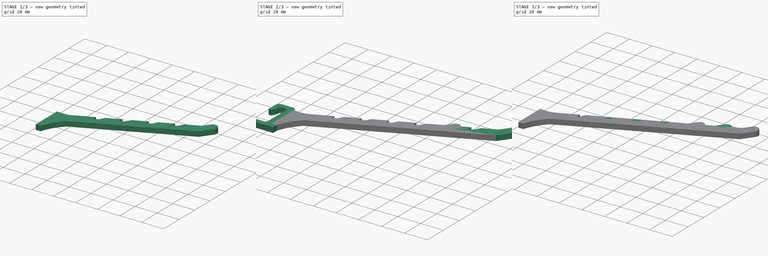
[diagram: build sequence overview — one tinted view per stage of 3, left to right]
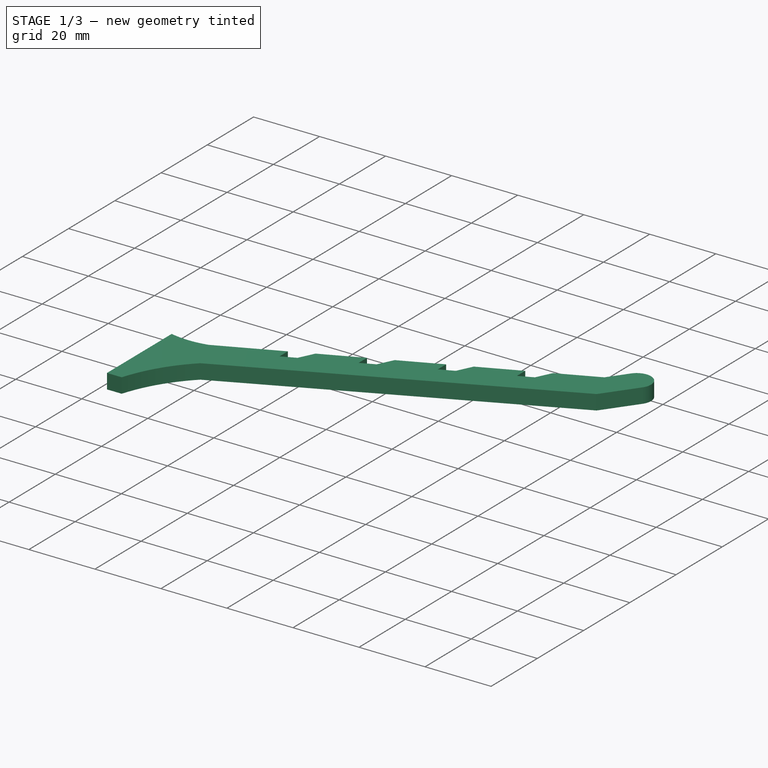
[diagram: stage 1 of 3 — iso view after this stage's code; geometry added in this stage tinted green]
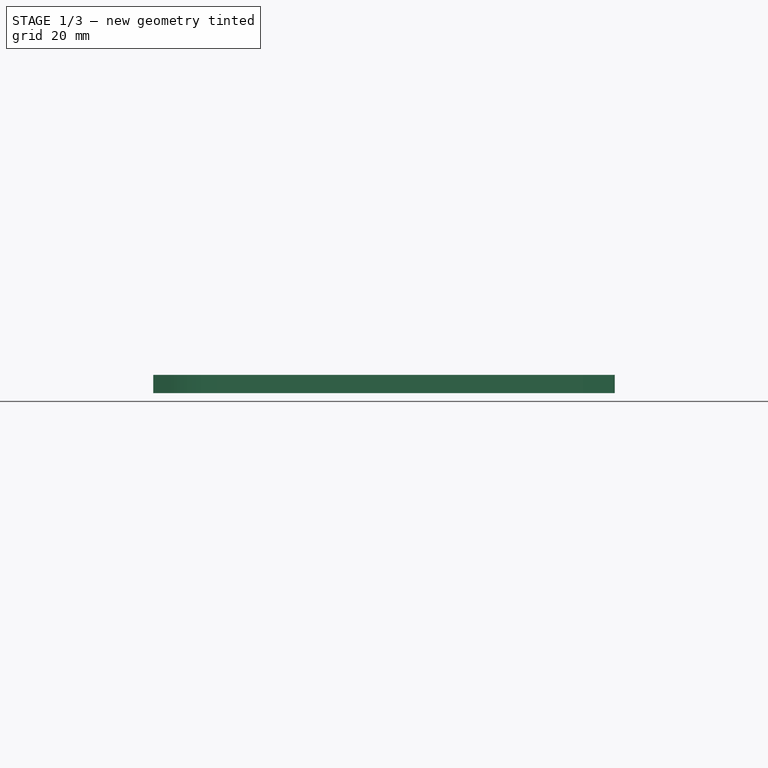
[diagram: stage 1 of 3 — front view after this stage's code; geometry added in this stage tinted green]
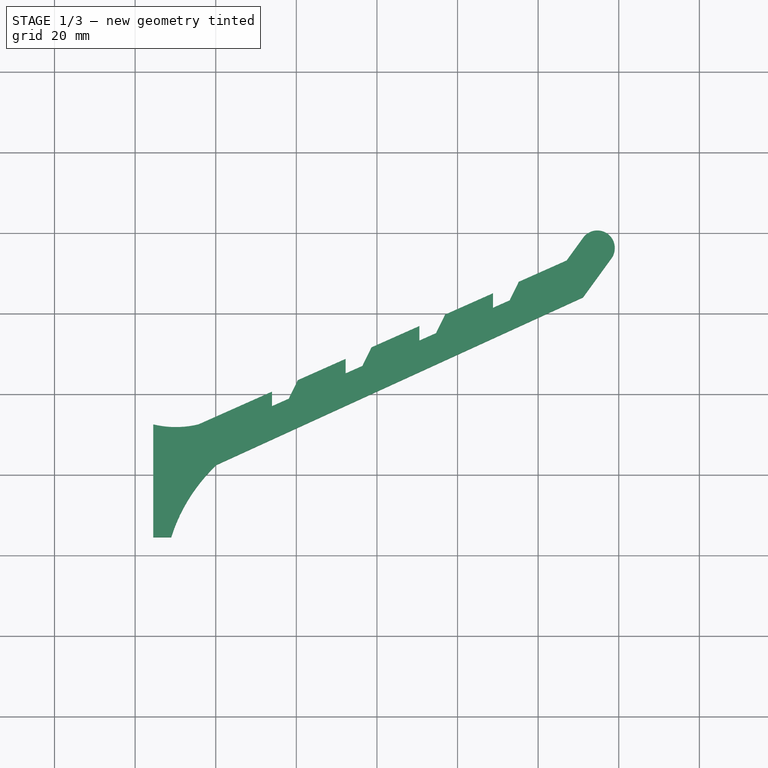
[diagram: stage 1 of 3 — top view after this stage's code; geometry added in this stage tinted green]
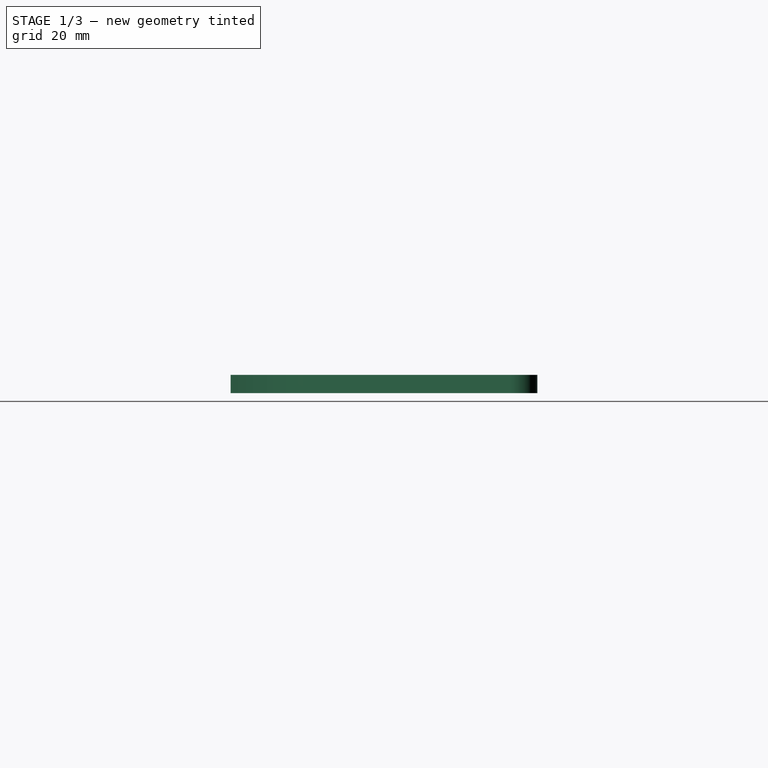
[diagram: stage 1 of 3 — right view after this stage's code; geometry added in this stage tinted green]
FCSTD DOCUMENT  (FreeCAD 0.19R24366 (Git))
Label: arm_improved
License: All rights reserved
LicenseURL: http://en.wikipedia.org/wiki/All_rights_reserved
objects: Sketcher::SketchObject×7, PartDesign::ShapeBinder×6, PartDesign::Pad×3, PartDesign::Pocket×3, PartDesign::Body×3, Part::Extrusion×1
note: 29 computed .brp shape members not serialized (recipe doc carries the construction recipe); baked Part::Feature solids carry a one-line shape summary decoded from their .brp

FEATURE [PartDesign::Body] Body001  label="Hook long"
  Group = -> [ShapeBinder002,Sketch004,Pad001,Sketch005,ShapeBinder003,Pocket001]
  Origin = -> Origin001
  Tip = -> Pocket001
FEATURE [PartDesign::ShapeBinder] ShapeBinder004
  TraceSupport = false
FEATURE [Sketcher::SketchObject] Sketch007
  ExternalGeometry = -> [ShapeBinder004]
  FullyConstrained = false
  MapMode = 5
  Support = -> [XY_Plane002]
  sketch-geometry (13):
    g0: ArcOfCircle CenterX=10.1027 CenterY=55.8369 CenterZ=0 NormalX=0 NormalY=0 NormalZ=1 AngleXU=0 Radius=24 StartAngle=4.47677 EndAngle=4.94801
    g1: LineSegment StartX=4.5 StartY=32.5 StartZ=0 EndX=29.8437 EndY=32.5 EndZ=0
    g2: LineSegment StartX=15.7054 StartY=32.5 StartZ=0 EndX=107.06 EndY=73.1737 EndZ=0
    g3: LineSegment StartX=107.06 StartY=73.1737 StartZ=0 EndX=111.174 EndY=78.8368 EndZ=0
    g4: ArcOfCircle CenterX=114.678 CenterY=76.2916 CenterZ=0 NormalX=0 NormalY=0 NormalZ=1 AngleXU=0 Radius=4.33013 StartAngle=5.65487 EndAngle=8.79646
    g5: LineSegment StartX=118.181 StartY=73.7464 StartZ=0 EndX=111.127 EndY=64.0382 EndZ=0
    g6: LineSegment StartX=111.127 StartY=64.0382 StartZ=0 EndX=20.1795 EndY=22.451 EndZ=0
    g7: LineSegment StartX=107.06 StartY=73.1737 StartZ=0 EndX=111.823 EndY=62.4766 EndZ=0
    g8: LineSegment StartX=15.7054 StartY=32.5 StartZ=0 EndX=20.256 EndY=22.2792 EndZ=0
    g9: ArcOfCircle CenterX=49.0219 CenterY=-8.0796 CenterZ=0 NormalX=0 NormalY=0 NormalZ=1 AngleXU=0 Radius=42 StartAngle=2.32777 EndAngle=2.83741
    g10: LineSegment StartX=111.174 StartY=78.8368 StartZ=0 EndX=68.085 EndY=110.143 EndZ=0
    g11: LineSegment StartX=8.95 StartY=4.5 StartZ=0 EndX=4.5 EndY=4.5 EndZ=0
    g12: LineSegment StartX=4.5 StartY=4.5 StartZ=0 EndX=4.5 EndY=32.5 EndZ=0
  constraints (35):
    c: Coincident(g0,g-3)
    c: Coincident(g1,g0)
    c: Horizontal(g1)
    c: PointOnObject(g0,g1)
    c: Coincident(g2,g0)
    c: Coincident(g3,g2)
    c: Coincident(g4,g3)
    c: Coincident(g5,g4)
    c: Parallel(g3,g5)
    c: Coincident(g6,g5)
    c: Coincident(g7,g2)
    c: Perpendicular(g2,g7)
    c: PointOnObject(g5,g7)
    c: Coincident(g8,g0)
    c: Perpendicular(g8,g2)
    c: PointOnObject(g6,g8)
    c: Distance(g0,g6) = 11
    c: Distance(g5,g2) = 10
    c: Coincident(g9,g6)
    c: Distance(g5) = 12
    c: Coincident(g10,g3)
    c: Perpendicular(g3,g10)
    c: PointOnObject(g4,g10)
    c: PointOnObject(g4,g10)
    c: Angle(g3,g2) = 2.61799
    c: Distance(g2,g0) = 100
    c: Angle(g0) = 0.471239
    c: Radius(g0) = 24
    c: Angle(g1,g2) = 0.418879
    c: Coincident(g9,g-6)
    c: Radius(g9) = 42
    c: Coincident(g11,g9)
    c: Coincident(g11,g-5)
    c: Coincident(g12,g11)
    c: Coincident(g12,g0)
FEATURE [PartDesign::Pad] Pad002
  Direction = (1,1,1)
  Length = 4.5
  Length2 = 100
  Profile = -> Sketch007
  Refine = true
  Type = 0
FEATURE [Sketcher::SketchObject] Sketch008
  ExternalGeometry = -> [Sketch007]
  FullyConstrained = true
  MapMode = 5
  Support = -> [XY_Plane002]
  sketch-geometry (4):
    g0: LineSegment StartX=6.39482 StartY=2.84716 StartZ=0 EndX=4.15193 EndY=-1.75144 EndZ=0
    g1: LineSegment StartX=4.15193 StartY=-1.75144 StartZ=0 EndX=0 EndY=-3.6 EndZ=0
    g2: LineSegment StartX=0 StartY=-3.6 StartZ=0 EndX=0 EndY=0 EndZ=0
    g3: LineSegment StartX=0 StartY=0 StartZ=0 EndX=6.39482 EndY=2.84716 EndZ=0
  constraints (12):
    c: Coincident(g0,g1)
    c: Coincident(g1,g2)
    c: Vertical(g2)
    c: Coincident(g2,g3)
    c: Coincident(g3,g0)
    c: Parallel(g3,g1)
    c: Angle(g0,g1) = 2.44346
    c: Distance(g3) = 7
    c: Distance(g2) = 3.6
    c: Angle(g-1,g-3) = 0.418879
    c: Angle(g-1,g3) = 0.418879
    c: Coincident(g2,g-1)
FEATURE [PartDesign::ShapeBinder] ShapeBinder005
  TraceSupport = false
FEATURE [PartDesign::Pocket] Pocket002
  BaseFeature = -> Pad002
  Length = 5
  Length2 = 100
  Profile = -> ShapeBinder005
  Refine = true
  Type = 0
FEATURE [PartDesign::Body] Body002  label="Hook short"
  Group = -> [ShapeBinder004,Sketch007,Pad002,Sketch008,ShapeBinder005,Pocket002]
  Origin = -> Origin002
  Tip = -> Pocket002
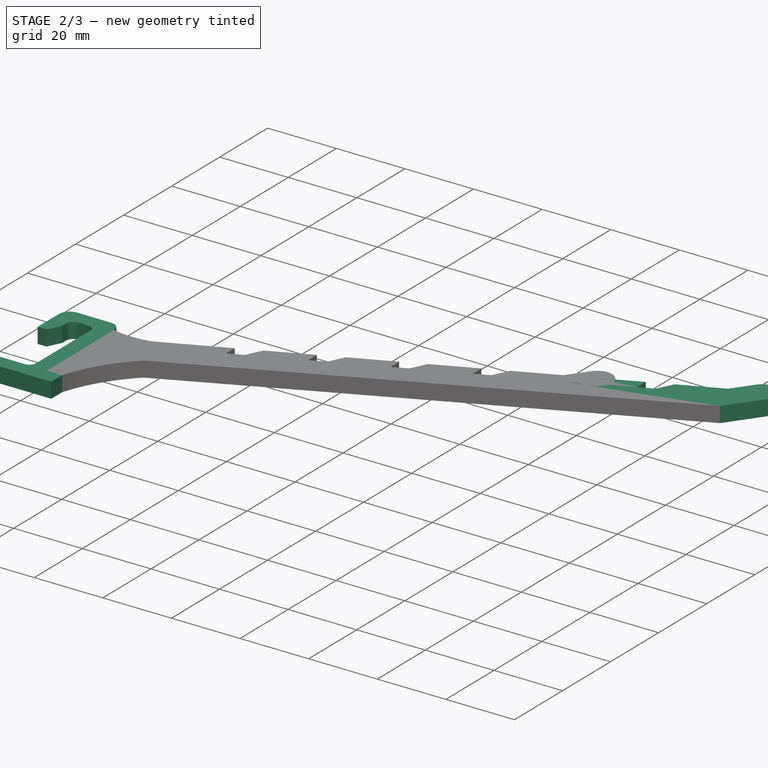
[diagram: stage 2 of 3 — iso view after this stage's code; geometry added in this stage tinted green]
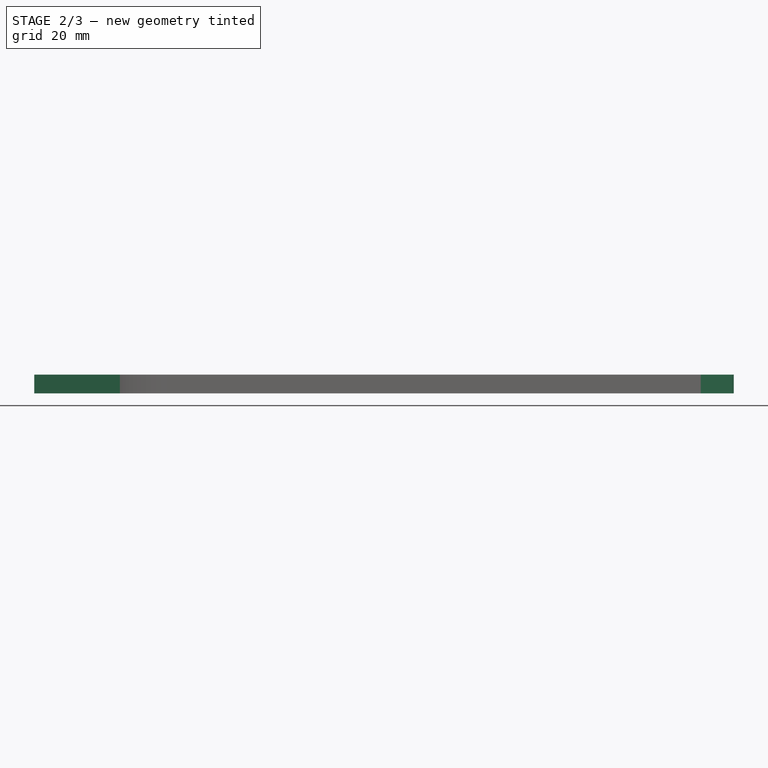
[diagram: stage 2 of 3 — front view after this stage's code; geometry added in this stage tinted green]
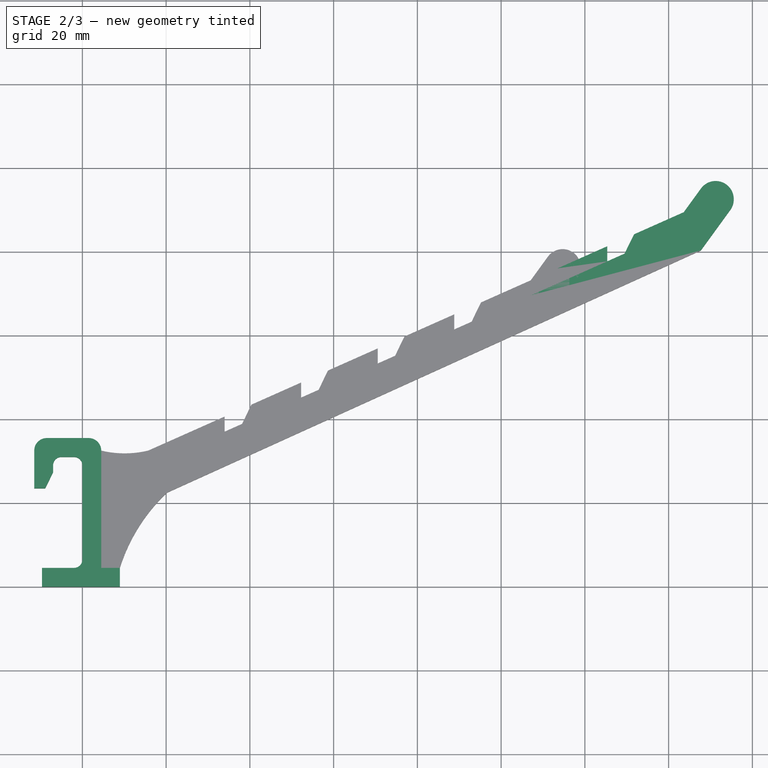
[diagram: stage 2 of 3 — top view after this stage's code; geometry added in this stage tinted green]
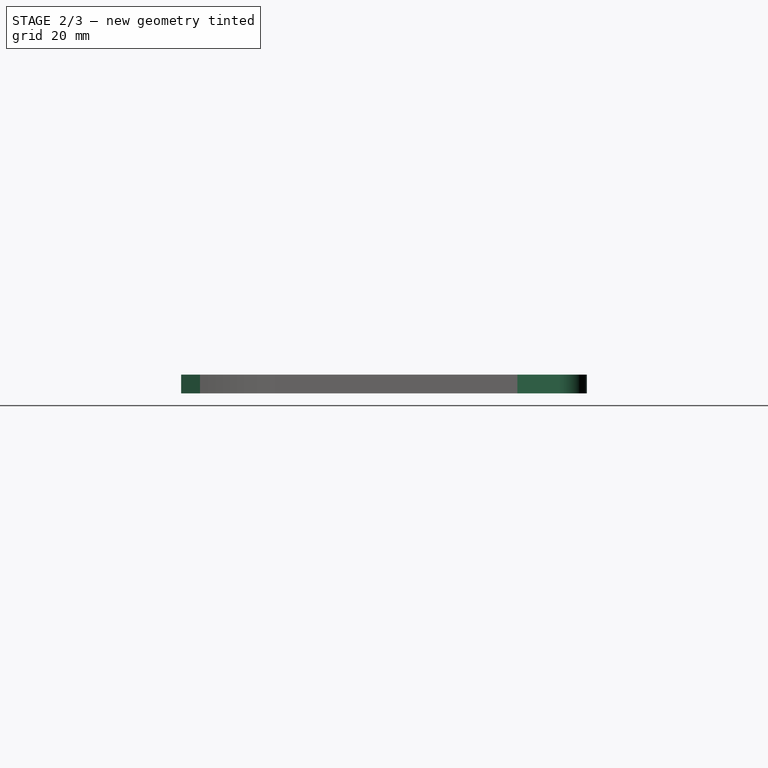
[diagram: stage 2 of 3 — right view after this stage's code; geometry added in this stage tinted green]
FEATURE [Sketcher::SketchObject] Sketch
  FullyConstrained = false
  sketch-geometry (20):
    g0: LineSegment StartX=0 StartY=0 StartZ=0 EndX=8.95 EndY=0 EndZ=0
    g1: LineSegment StartX=0 StartY=29 StartZ=0 EndX=0 EndY=6.5 EndZ=0
    g2: LineSegment StartX=8.95 StartY=0 StartZ=0 EndX=8.95 EndY=4.5 EndZ=0
    g3: LineSegment StartX=8.95 StartY=4.5 StartZ=0 EndX=4.5 EndY=4.5 EndZ=0
    g4: LineSegment StartX=0 StartY=0 StartZ=0 EndX=-9.63565 EndY=0 EndZ=0
    g5: LineSegment StartX=-9.63565 StartY=0 StartZ=0 EndX=-9.63565 EndY=4.5 EndZ=0
    g6: LineSegment StartX=-9.63565 StartY=4.5 StartZ=0 EndX=-2 EndY=4.5 EndZ=0
    g7: LineSegment StartX=1.5 StartY=35.5 StartZ=0 EndX=-8.5 EndY=35.5 EndZ=0
    g8: LineSegment StartX=-5 StartY=31 StartZ=0 EndX=-2 EndY=31 EndZ=0
    g9: LineSegment StartX=-7 StartY=29 StartZ=0 EndX=-7 EndY=27.3347 EndZ=0
    g10: LineSegment StartX=-8.88721 StartY=23.5 StartZ=0 EndX=-11.5 EndY=23.5 EndZ=0
    g11: LineSegment StartX=-11.5 StartY=23.5 StartZ=0 EndX=-11.5 EndY=32.5 EndZ=0
    g12: ArcOfCircle CenterX=-5 CenterY=29 CenterZ=0 NormalX=0 NormalY=0 NormalZ=1 AngleXU=0 Radius=2 StartAngle=1.5708 EndAngle=3.14159
    g13: ArcOfCircle CenterX=-2 CenterY=29 CenterZ=0 NormalX=0 NormalY=0 NormalZ=1 AngleXU=0 Radius=2 StartAngle=8e-16 EndAngle=1.5708
    g14: ArcOfCircle CenterX=-2 CenterY=6.5 CenterZ=0 NormalX=0 NormalY=0 NormalZ=1 AngleXU=0 Radius=2 StartAngle=4.71239 EndAngle=6.28319
    g15: LineSegment StartX=4.5 StartY=25.8 StartZ=0 EndX=4.5 EndY=32.5 EndZ=0
    g16: LineSegment StartX=4.5 StartY=4.5 StartZ=0 EndX=4.5 EndY=25.8 EndZ=0
    g17: ArcOfCircle CenterX=-8.5 CenterY=32.5 CenterZ=0 NormalX=0 NormalY=0 NormalZ=1 AngleXU=0 Radius=3 StartAngle=1.5708 EndAngle=3.14159
    g18: ArcOfCircle CenterX=1.5 CenterY=32.5 CenterZ=0 NormalX=0 NormalY=0 NormalZ=1 AngleXU=0 Radius=3 StartAngle=4e-16 EndAngle=1.5708
    g19: LineSegment StartX=-8.88721 StartY=23.5 StartZ=0 EndX=-7 EndY=27.3347 EndZ=0
  constraints (51):
    c: Horizontal(g0)
    c: Vertical(g1)
    c: Coincident(g0,g-1)
    c: Coincident(g2,g3)
    c: Horizontal(g3)
    c: Vertical(g2)
    c: Coincident(g4,g5)
    c: Coincident(g5,g6)
    c: Horizontal(g4)
    c: Horizontal(g6)
    c: Vertical(g5)
    c: Coincident(g4,g0)
    c: Horizontal(g7)
    c: Horizontal(g8)
    c: Coincident(g10,g11)
    c: Horizontal(g10)
    c: Vertical(g9)
    c: Vertical(g11)
    c: DistanceX(g3,g3) = 4.45
    c: DistanceY(g2,g2) = 4.5
    c: DistanceY(g5,g5) = 4.5
    c: DistanceY(g3,g16) = 21.3
    c: Tangent(g9,g12) = -1.5708
    c: Tangent(g8,g12) = 1.5708
    c: Tangent(g8,g13) = 1.5708
    c: Tangent(g1,g13) = 1.5708
    c: Tangent(g1,g14) = 1.5708
    c: Tangent(g6,g14) = -1.5708
    c: Distance(g8,g7) = 4.5
    c: Vertical(g1,g0)
    c: Radius(g12) = 2
    c: Radius(g13) = 2
    c: Radius(g14) = 2
    c: Coincident(g16,g3)
    c: Vertical(g16)
    c: Distance(g1,g16) = 4.5
    c: Vertical(g15)
    c: Coincident(g0,g2)
    c: Tangent(g7,g17) = -1.5708
    c: Tangent(g11,g17) = 1.5708
    c: Distance(g10,g7) = 12
    c: Radius(g17) = 3
    c: Distance(g0,g7) = 35.5
    c: Tangent(g7,g18) = -1.5708
    c: Tangent(g15,g18) = -1.5708
    c: Radius(g18) = 3
    c: Coincident(g19,g10)
    c: Coincident(g19,g9)
    c: Distance(g9,g11) = 4.5
    c: Distance(g9,g1) = 7
    c: Coincident(g15,g16)
FEATURE [Part::Extrusion] Extrude
  Base = -> Sketch
  Dir = (0,0,1)
  DirMode = 2
  FaceMakerClass = Part::FaceMakerBullseye
  LengthFwd = 4.5
  LengthRev = 0
  Solid = true
  Symmetric = false
FEATURE [PartDesign::Body] Body  label="Hook"
  Group = -> [ShapeBinder,Sketch001,Pad,Sketch002,ShapeBinder001,Pocket]
  Origin = -> Origin
  Tip = -> Pocket
FEATURE [PartDesign::ShapeBinder] ShapeBinder002
  TraceSupport = false
FEATURE [Sketcher::SketchObject] Sketch004
  ExternalGeometry = -> [ShapeBinder002]
  FullyConstrained = false
  MapMode = 5
  Support = -> [XY_Plane001]
  sketch-geometry (13):
    g0: ArcOfCircle CenterX=10.1027 CenterY=55.8369 CenterZ=0 NormalX=0 NormalY=0 NormalZ=1 AngleXU=0 Radius=24 StartAngle=4.47677 EndAngle=4.94801
    g1: LineSegment StartX=4.5 StartY=32.5 StartZ=0 EndX=29.8437 EndY=32.5 EndZ=0
    g2: LineSegment StartX=15.7054 StartY=32.5 StartZ=0 EndX=143.602 EndY=89.4431 EndZ=0
    g3: LineSegment StartX=143.602 StartY=89.4431 StartZ=0 EndX=147.716 EndY=95.1062 EndZ=0
    g4: ArcOfCircle CenterX=151.219 CenterY=92.5611 CenterZ=0 NormalX=0 NormalY=0 NormalZ=1 AngleXU=0 Radius=4.33013 StartAngle=5.65487 EndAngle=8.79646
    g5: LineSegment StartX=154.723 StartY=90.0159 StartZ=0 EndX=147.669 EndY=80.3077 EndZ=0
    g6: LineSegment StartX=147.669 StartY=80.3077 StartZ=0 EndX=20.1795 EndY=22.451 EndZ=0
    g7: LineSegment StartX=143.602 StartY=89.4431 StartZ=0 EndX=148.387 EndY=78.6959 EndZ=0
    g8: LineSegment StartX=15.7054 StartY=32.5 StartZ=0 EndX=20.256 EndY=22.2791 EndZ=0
    g9: ArcOfCircle CenterX=49.0219 CenterY=-8.0796 CenterZ=0 NormalX=0 NormalY=0 NormalZ=1 AngleXU=0 Radius=42 StartAngle=2.32777 EndAngle=2.83741
    g10: LineSegment StartX=147.716 StartY=95.1062 StartZ=0 EndX=88.4465 EndY=138.168 EndZ=0
    g11: LineSegment StartX=8.95 StartY=4.5 StartZ=0 EndX=4.5 EndY=4.5 EndZ=0
    g12: LineSegment StartX=4.5 StartY=4.5 StartZ=0 EndX=4.5 EndY=32.5 EndZ=0
  constraints (35):
    c: Coincident(g0,g-3)
    c: Coincident(g1,g0)
    c: Horizontal(g1)
    c: PointOnObject(g0,g1)
    c: Coincident(g2,g0)
    c: Coincident(g3,g2)
    c: Coincident(g4,g3)
    c: Coincident(g5,g4)
    c: Parallel(g3,g5)
    c: Coincident(g6,g5)
    c: Coincident(g7,g2)
    c: Perpendicular(g2,g7)
    c: PointOnObject(g5,g7)
    c: Coincident(g8,g0)
    c: Perpendicular(g8,g2)
    c: PointOnObject(g6,g8)
    c: Distance(g0,g6) = 11
    c: Distance(g5,g2) = 10
    c: Coincident(g9,g6)
    c: Distance(g5) = 12
    c: Coincident(g10,g3)
    c: Perpendicular(g3,g10)
    c: PointOnObject(g4,g10)
    c: PointOnObject(g4,g10)
    c: Angle(g3,g2) = 2.61799
    c: Distance(g2,g0) = 140
    c: Angle(g0) = 0.471239
    c: Radius(g0) = 24
    c: Angle(g1,g2) = 0.418879
    c: Coincident(g9,g-6)
    c: Radius(g9) = 42
    c: Coincident(g11,g9)
    c: Coincident(g11,g-5)
    c: Coincident(g12,g11)
    c: Coincident(g12,g0)
FEATURE [PartDesign::Pad] Pad001
  Direction = (1,1,1)
  Length = 4.5
  Length2 = 100
  Profile = -> Sketch004
  Refine = true
  Type = 0
FEATURE [Sketcher::SketchObject] Sketch005
  ExternalGeometry = -> [Sketch004]
  FullyConstrained = true
  MapMode = 5
  Support = -> [XY_Plane001]
  sketch-geometry (4):
    g0: LineSegment StartX=6.39482 StartY=2.84716 StartZ=0 EndX=4.15193 EndY=-1.75144 EndZ=0
    g1: LineSegment StartX=4.15193 StartY=-1.75144 StartZ=0 EndX=0 EndY=-3.6 EndZ=0
    g2: LineSegment StartX=0 StartY=-3.6 StartZ=0 EndX=0 EndY=0 EndZ=0
    g3: LineSegment StartX=0 StartY=0 StartZ=0 EndX=6.39482 EndY=2.84716 EndZ=0
  constraints (12):
    c: Coincident(g0,g1)
    c: Coincident(g1,g2)
    c: Vertical(g2)
    c: Coincident(g2,g3)
    c: Coincident(g3,g0)
    c: Parallel(g3,g1)
    c: Angle(g0,g1) = 2.44346
    c: Distance(g3) = 7
    c: Distance(g2) = 3.6
    c: Angle(g-1,g-3) = 0.418879
    c: Angle(g-1,g3) = 0.418879
    c: Coincident(g2,g-1)
FEATURE [PartDesign::ShapeBinder] ShapeBinder003
  TraceSupport = false
FEATURE [PartDesign::Pocket] Pocket001
  BaseFeature = -> Pad001
  Length = 5
  Length2 = 100
  Profile = -> ShapeBinder003
  Refine = true
  Type = 0
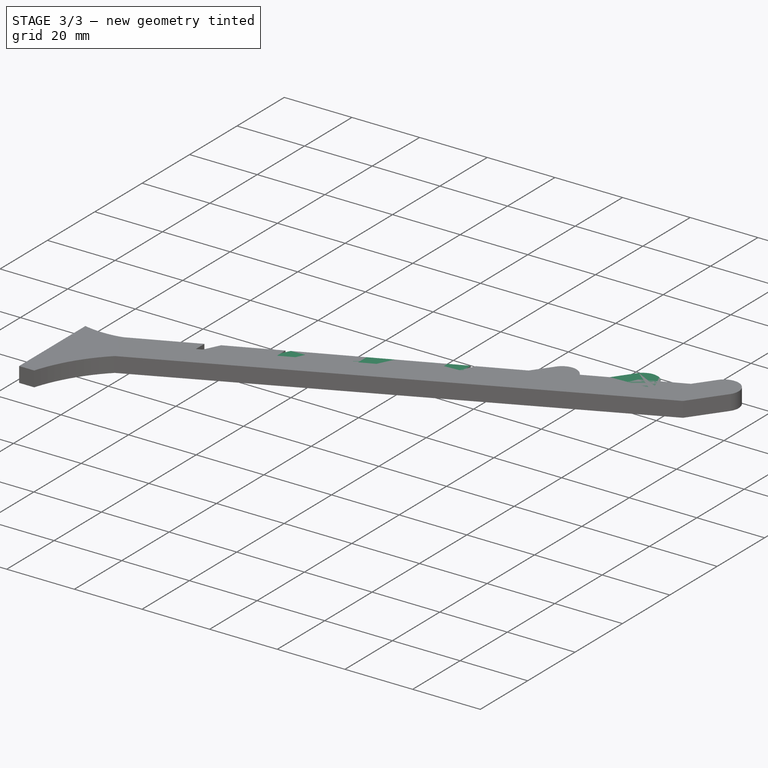
[diagram: stage 3 of 3 — iso view after this stage's code; geometry added in this stage tinted green]
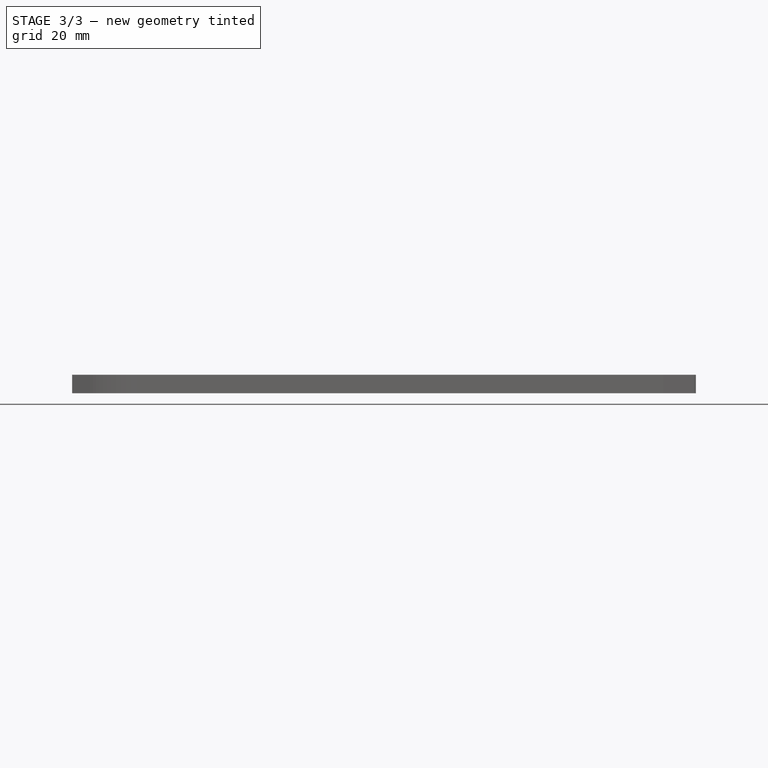
[diagram: stage 3 of 3 — front view after this stage's code; geometry added in this stage tinted green]
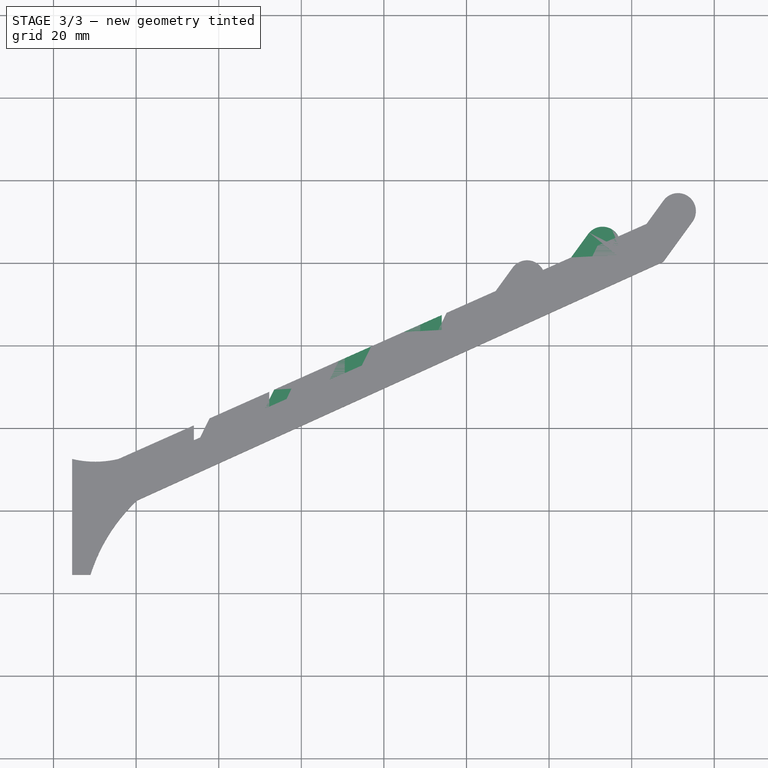
[diagram: stage 3 of 3 — top view after this stage's code; geometry added in this stage tinted green]
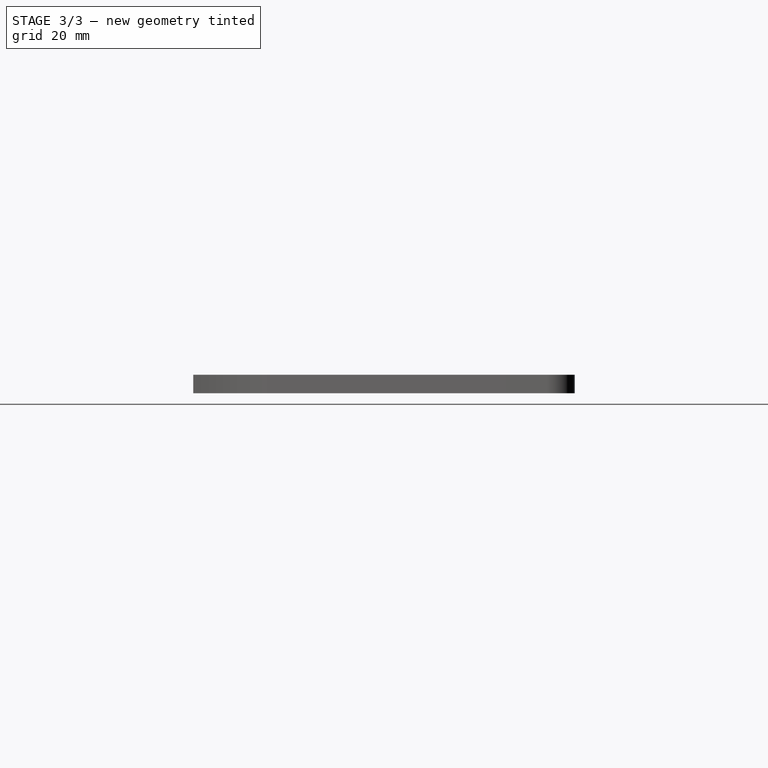
[diagram: stage 3 of 3 — right view after this stage's code; geometry added in this stage tinted green]
FEATURE [PartDesign::ShapeBinder] ShapeBinder
  Support = -> [Extrude]
  TraceSupport = false
FEATURE [Sketcher::SketchObject] Sketch001
  ExternalGeometry = -> [ShapeBinder]
  FullyConstrained = false
  MapMode = 5
  Support = -> [XY_Plane]
  sketch-geometry (13):
    g0: ArcOfCircle CenterX=10.1027 CenterY=55.8369 CenterZ=0 NormalX=0 NormalY=0 NormalZ=1 AngleXU=0 Radius=24 StartAngle=4.47677 EndAngle=4.94801
    g1: LineSegment StartX=4.5 StartY=32.5 StartZ=0 EndX=29.8437 EndY=32.5 EndZ=0
    g2: LineSegment StartX=15.7054 StartY=32.5 StartZ=0 EndX=125.331 EndY=81.3084 EndZ=0
    g3: LineSegment StartX=125.331 StartY=81.3084 StartZ=0 EndX=129.445 EndY=86.9715 EndZ=0
    g4: ArcOfCircle CenterX=132.948 CenterY=84.4263 CenterZ=0 NormalX=0 NormalY=0 NormalZ=1 AngleXU=0 Radius=4.33013 StartAngle=5.65487 EndAngle=8.79646
    g5: LineSegment StartX=136.452 StartY=81.8811 StartZ=0 EndX=129.398 EndY=72.1729 EndZ=0
    g6: LineSegment StartX=129.398 StartY=72.1729 StartZ=0 EndX=20.1795 EndY=22.451 EndZ=0
    g7: LineSegment StartX=125.331 StartY=81.3084 StartZ=0 EndX=126.493 EndY=78.6975 EndZ=0
    g8: LineSegment StartX=15.7054 StartY=32.5 StartZ=0 EndX=20.256 EndY=22.2791 EndZ=0
    g9: ArcOfCircle CenterX=49.0219 CenterY=-8.0796 CenterZ=0 NormalX=0 NormalY=0 NormalZ=1 AngleXU=0 Radius=42 StartAngle=2.32777 EndAngle=2.83741
    g10: LineSegment StartX=129.445 StartY=86.9715 StartZ=0 EndX=88.4465 EndY=116.759 EndZ=0
    g11: LineSegment StartX=8.95 StartY=4.5 StartZ=0 EndX=4.5 EndY=4.5 EndZ=0
    g12: LineSegment StartX=4.5 StartY=4.5 StartZ=0 EndX=4.5 EndY=32.5 EndZ=0
  constraints (35):
    c: Coincident(g0,g-3)
    c: Coincident(g1,g0)
    c: Horizontal(g1)
    c: PointOnObject(g0,g1)
    c: Coincident(g2,g0)
    c: Coincident(g3,g2)
    c: Coincident(g4,g3)
    c: Coincident(g5,g4)
    c: Parallel(g3,g5)
    c: Coincident(g6,g5)
    c: Coincident(g7,g2)
    c: Perpendicular(g2,g7)
    c: PointOnObject(g5,g7)
    c: Coincident(g8,g0)
    c: Perpendicular(g8,g2)
    c: PointOnObject(g6,g8)
    c: Distance(g0,g6) = 11
    c: Distance(g5,g2) = 10
    c: Coincident(g9,g6)
    c: Distance(g5) = 12
    c: Coincident(g10,g3)
    c: Perpendicular(g3,g10)
    c: PointOnObject(g4,g10)
    c: PointOnObject(g4,g10)
    c: Angle(g3,g2) = 2.61799
    c: Distance(g2,g0) = 120
    c: Angle(g0) = 0.471239
    c: Radius(g0) = 24
    c: Angle(g1,g2) = 0.418879
    c: Coincident(g9,g-6)
    c: Radius(g9) = 42
    c: Coincident(g11,g9)
    c: Coincident(g11,g-5)
    c: Coincident(g12,g11)
    c: Coincident(g12,g0)
FEATURE [PartDesign::Pad] Pad
  Direction = (1,1,1)
  Length = 4.5
  Length2 = 100
  Profile = -> Sketch001
  Refine = true
  Type = 0
FEATURE [Sketcher::SketchObject] Sketch002
  ExternalGeometry = -> [Sketch001]
  FullyConstrained = true
  MapMode = 5
  Support = -> [XY_Plane]
  sketch-geometry (4):
    g0: LineSegment StartX=6.39482 StartY=2.84716 StartZ=0 EndX=4.15193 EndY=-1.75144 EndZ=0
    g1: LineSegment StartX=4.15193 StartY=-1.75144 StartZ=0 EndX=0 EndY=-3.6 EndZ=0
    g2: LineSegment StartX=0 StartY=-3.6 StartZ=0 EndX=0 EndY=0 EndZ=0
    g3: LineSegment StartX=0 StartY=0 StartZ=0 EndX=6.39482 EndY=2.84716 EndZ=0
  constraints (12):
    c: Coincident(g0,g1)
    c: Coincident(g1,g2)
    c: Vertical(g2)
    c: Coincident(g2,g3)
    c: Coincident(g3,g0)
    c: Parallel(g3,g1)
    c: Angle(g0,g1) = 2.44346
    c: Distance(g3) = 7
    c: Distance(g2) = 3.6
    c: Angle(g-1,g-3) = 0.418879
    c: Angle(g-1,g3) = 0.418879
    c: Coincident(g2,g-1)
FEATURE [PartDesign::ShapeBinder] ShapeBinder001
  TraceSupport = false
FEATURE [PartDesign::Pocket] Pocket
  BaseFeature = -> Pad
  Length = 5
  Length2 = 100
  Profile = -> ShapeBinder001
  Refine = true
  Type = 0
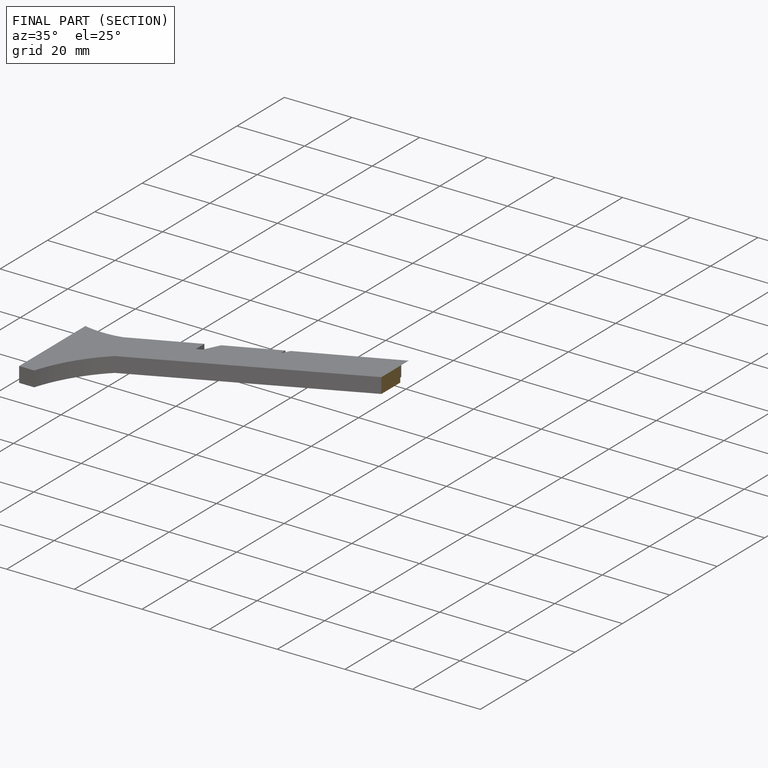
[diagram: finished part — half-section view (interior)]
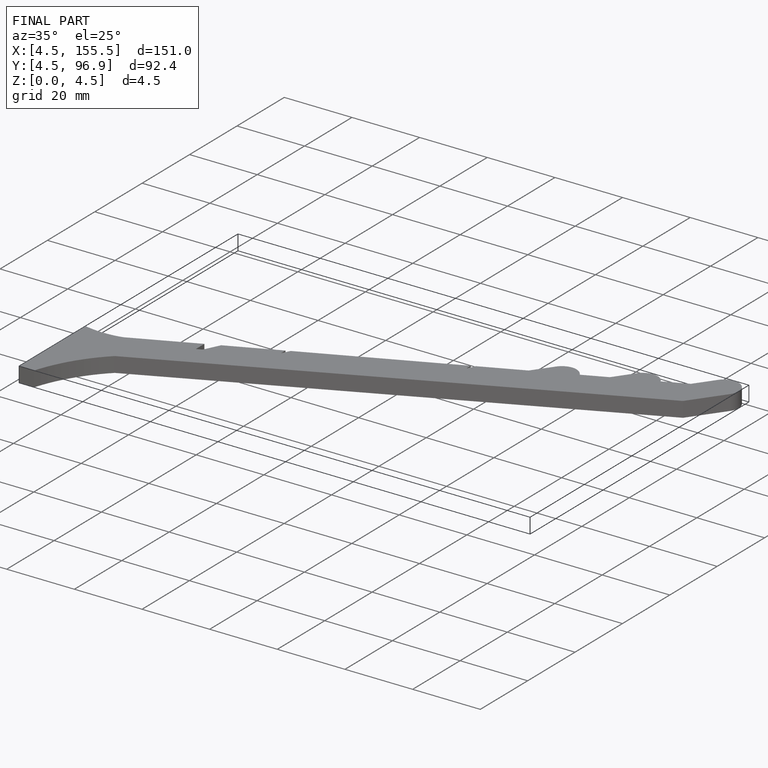
[diagram: finished part — iso view with bounding-box wireframe]
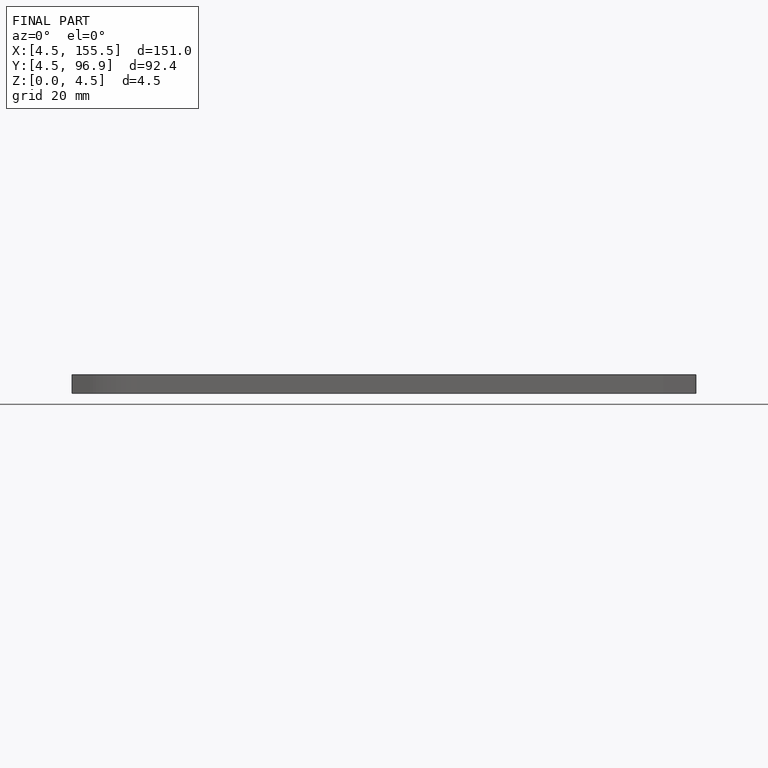
[diagram: finished part — front view with bounding-box wireframe]
